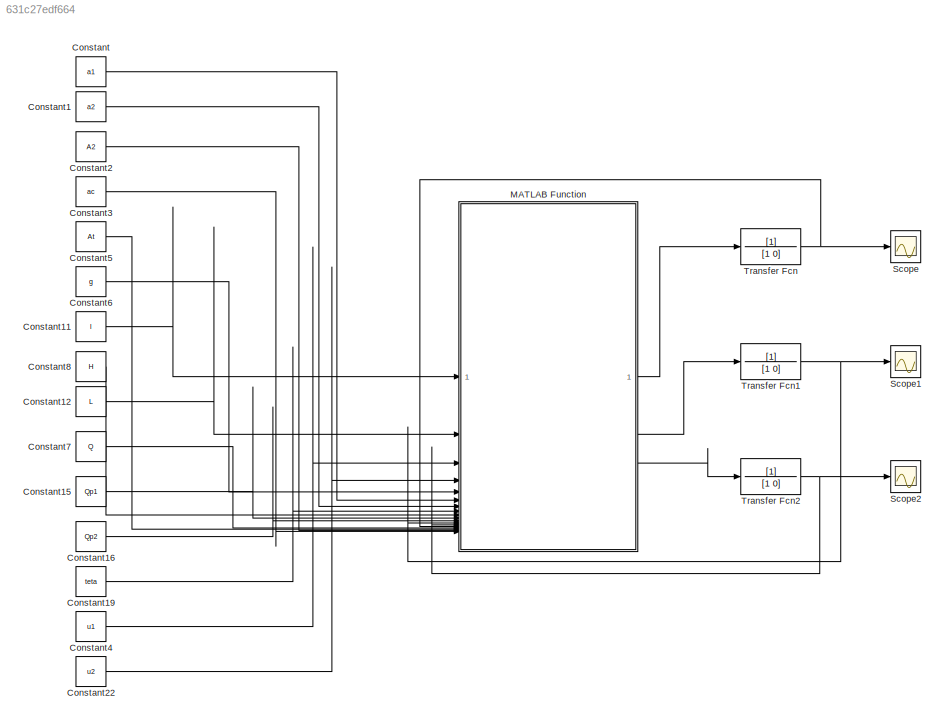
MODEL slx_631c27edf664
KIND model
CONFIG AbsTol = auto
CONFIG EnableMultiTasking = off
CONFIG FixedStep = auto
CONFIG MaxStep = auto
CONFIG MinStep = auto
CONFIG RelTol = 1e-3
CONFIG SampleTimeConstraint = Unconstrained
CONFIG SolverName = VariableStepAuto
CONFIG StartTime = 0.0
CONFIG StopTime = 500
BLOCK [Constant] Constant
  Value = a1
BLOCK [Constant] Constant1
  Value = a2
BLOCK [Constant] Constant11
  Value = l
BLOCK [Constant] Constant12
  Value = L
BLOCK [Constant] Constant15
  Value = Qp1
BLOCK [Constant] Constant16
  Value = Qp2
BLOCK [Constant] Constant19
  Value = teta
BLOCK [Constant] Constant2
  Value = A2
BLOCK [Constant] Constant22
  Value = u2
BLOCK [Constant] Constant3
  Value = ac
BLOCK [Constant] Constant4
  Value = u1
BLOCK [Constant] Constant5
  Value = At
BLOCK [Constant] Constant6
  Value = g
BLOCK [Constant] Constant7
  Value = Q
BLOCK [Constant] Constant8
  Value = H
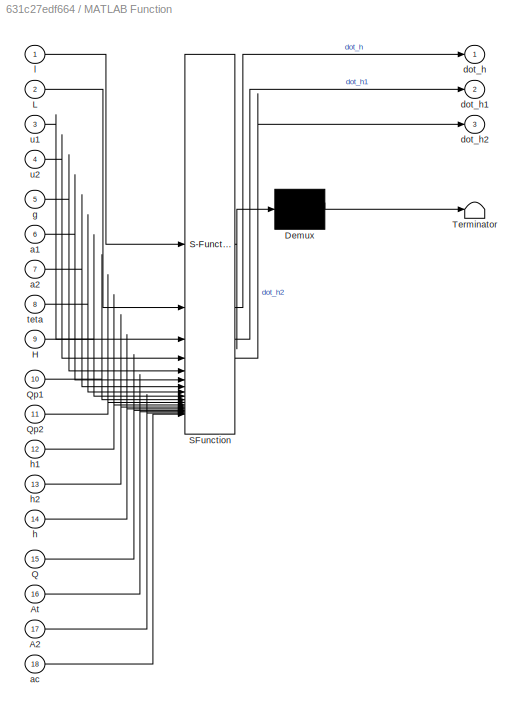
BLOCK [SubSystem] MATLAB Function
  ErrorFcn = Stateflow.Translate.translate
  PermitHierarchicalResolution = ExplicitOnly
  SFBlockType = MATLAB Function
  TreatAsAtomicUnit = on
BLOCK [Demux] MATLAB Function/ Demux 
  Outputs = 1
BLOCK [S-Function] MATLAB Function/ SFunction 
  EnableBusSupport = on
  FunctionName = sf_sfun
  PortCounts = [18 4]
  SFcnIsStateOwnerBlock = off
  SFunctionDeploymentMode = off
  Tag = Stateflow S-Function 2
BLOCK [Terminator] MATLAB Function/ Terminator 
BLOCK [Inport] MATLAB Function/A2
  Port = 17
BLOCK [Inport] MATLAB Function/At
  Port = 16
BLOCK [Inport] MATLAB Function/H
  Port = 9
BLOCK [Inport] MATLAB Function/L
  Port = 2
BLOCK [Inport] MATLAB Function/Q
  Port = 15
BLOCK [Inport] MATLAB Function/Qp1
  Port = 10
BLOCK [Inport] MATLAB Function/Qp2
  Port = 11
BLOCK [Inport] MATLAB Function/a1
  Port = 6
BLOCK [Inport] MATLAB Function/a2
  Port = 7
BLOCK [Inport] MATLAB Function/ac
  Port = 18
BLOCK [Outport] MATLAB Function/dot_h
BLOCK [Outport] MATLAB Function/dot_h1
  Port = 2
BLOCK [Outport] MATLAB Function/dot_h2
  Port = 3
BLOCK [Inport] MATLAB Function/g
  Port = 5
BLOCK [Inport] MATLAB Function/h
  Port = 14
BLOCK [Inport] MATLAB Function/h1
  Port = 12
BLOCK [Inport] MATLAB Function/h2
  Port = 13
BLOCK [Inport] MATLAB Function/l
BLOCK [Inport] MATLAB Function/teta
  Port = 8
BLOCK [Inport] MATLAB Function/u1
  Port = 3
BLOCK [Inport] MATLAB Function/u2
  Port = 4
BLOCK [Scope] Scope
  Floating = off
  NumInputPorts = 1
  ScopeSpecificationString = Simulink.scopes.TimeScopeBlockCfg('CurrentConfiguration', extmgr.ConfigurationSet(extmgr.Configuration('Core','General UI',true),extmgr.Configuration('Core','Source UI',true),extmgr.Configuration('Sources','WiredSimulink',true,'DataLoggingVariableName','ScopeData1'),extmgr.Configuration('Visuals','Time Domain',true,'SerializedDisplays',{struct('MinYLimReal','-0.09229','MaxYLimReal','0.01025','YLab...<+1371ch>
BLOCK [Scope] Scope1
  Floating = off
  NumInputPorts = 1
  ScopeSpecificationString = Simulink.scopes.TimeScopeBlockCfg('CurrentConfiguration', extmgr.ConfigurationSet(extmgr.Configuration('Core','General UI',true),extmgr.Configuration('Core','Source UI',true),extmgr.Configuration('Sources','WiredSimulink',true,'DataLoggingVariableName','ScopeData2'),extmgr.Configuration('Visuals','Time Domain',true,'SerializedDisplays',{struct('MinYLimReal','-0.04215','MaxYLimReal','0.37939','YLab...<+1372ch>
BLOCK [Scope] Scope2
  Floating = off
  NumInputPorts = 1
  ScopeSpecificationString = Simulink.scopes.TimeScopeBlockCfg('CurrentConfiguration', extmgr.ConfigurationSet(extmgr.Configuration('Core','General UI',true),extmgr.Configuration('Core','Source UI',true),extmgr.Configuration('Sources','WiredSimulink',true,'DataLoggingVariableName','ScopeData2'),extmgr.Configuration('Visuals','Time Domain',true,'SerializedDisplays',{struct('MinYLimReal','-0.04258','MaxYLimReal','0.38321','YLab...<+1401ch>
BLOCK [TransferFcn] Transfer Fcn
  Denominator = [1 0]
BLOCK [TransferFcn] Transfer Fcn1
  Denominator = [1 0]
BLOCK [TransferFcn] Transfer Fcn2
  Denominator = [1 0]
LINE Constant11:1 -> MATLAB Function:1
LINE Constant12:1 -> MATLAB Function:2
LINE Constant15:1 -> MATLAB Function:10
LINE Constant16:1 -> MATLAB Function:11
LINE Constant19:1 -> MATLAB Function:8
LINE Constant1:1 -> MATLAB Function:7
LINE Constant22:1 -> MATLAB Function:4
LINE Constant2:1 -> MATLAB Function:17
LINE Constant3:1 -> MATLAB Function:18
LINE Constant4:1 -> MATLAB Function:3
LINE Constant5:1 -> MATLAB Function:16
LINE Constant6:1 -> MATLAB Function:5
LINE Constant7:1 -> MATLAB Function:15
LINE Constant8:1 -> MATLAB Function:9
LINE Constant:1 -> MATLAB Function:6
LINE MATLAB Function:1 -> Transfer Fcn:1
LINE MATLAB Function:2 -> Transfer Fcn1:1
LINE MATLAB Function:3 -> Transfer Fcn2:1
NET Transfer Fcn1:1 -> MATLAB Function:12, Scope1:1
NET Transfer Fcn2:1 -> MATLAB Function:13, Scope2:1
NET Transfer Fcn:1 -> MATLAB Function:14, Scope:1
note: NET lines group one-source signal fan-out (src -> all destinations, sorted); 1:1 wires keep LINE
CHART MATLAB Function states=1 transitions=1
  STATE_LABEL 'eML_blk_kernel()'
  STATE_LABEL 'SCRIPT:\nfunction [dot_h,dot_h1,dot_h2] = FCN(l,L,u1,u2,g,a1,a2,teta,H,Qp1,Qp2,h1,h2,h, Q, At, A2, ac)\nu11=u1*5;\nu22=u2*5;\ndot_h1=1/(l*(L+h1*tan(teta)))*((((u1/(u1+u2))*((u1+u2)/100)/2)*Q+u11*Qp1-a1*sqrt(abs(2*(g*h1*(1+(h1/(4*L))*sin(2*teta))-g*H*H/(4*L)*sin(2*teta)))))-ac*sign(h1-h2+((h1*H)/2*L)*sin(2*teta)-(H*H)/(4*L)*sin(2*teta))*sqrt(abs(2*g*abs(h1-h2+((h1*H)/2*L)*sin(2*teta)-(H*H)/(4*L)*sin(2*...<+356ch>'
CHART  states=0 transitions=0
